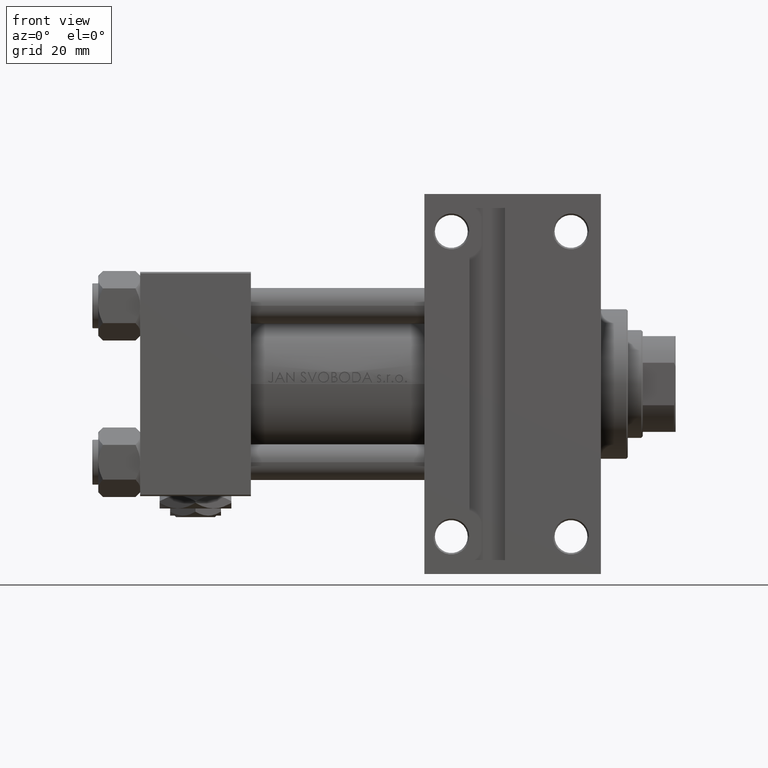
[diagram: clean part render]
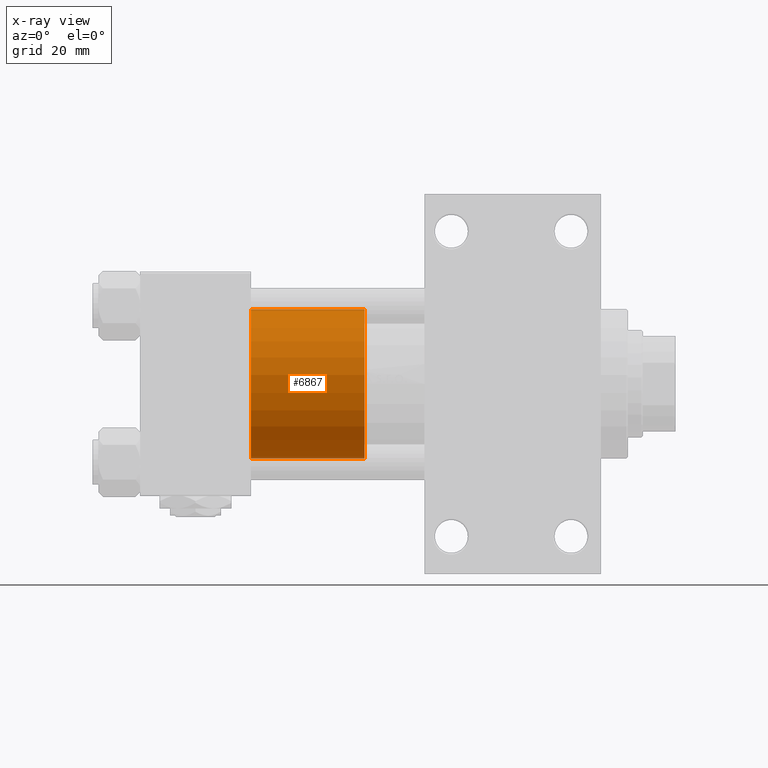
[diagram: x-ray — body ghosted, one internal face saturated and labeled with its STEP entity id]
A machine part, front view, then the same camera in x-ray: the body is ghosted and one INTERNAL B-rep face — a face not visible from any outside direction — is saturated and labeled: STEP entity #6867.
In plain terms, the highlighted cylindrical surface (partial cylindrical patch) has radius 25 mm, axis along (-1, 0, 0).
Its self-contained STEP definition (entity closure, byte-faithful):
#989 = CARTESIAN_POINT ( 'NONE',  ( 0.000000000000000000, 0.000000000000000000, 38.00000000000000000 ) ) ;
#2960 = LINE ( 'NONE', #3956, #47629 ) ;
#3786 = EDGE_LOOP ( 'NONE', ( #28985, #40294, #20884, #45509 ) ) ;
#3956 = CARTESIAN_POINT ( 'NONE',  ( -25.00000000000000000, 0.000000000000000000, 38.00000000000000000 ) ) ;
#6867 = ADVANCED_FACE ( 'NONE', ( #46793 ), #47032, .T. ) ;
#7308 = DIRECTION ( 'NONE',  ( 1.000000000000000000, 0.000000000000000000, 0.000000000000000000 ) ) ;
#8178 = LINE ( 'NONE', #23499, #30265 ) ;
#8735 = DIRECTION ( 'NONE',  ( 0.000000000000000000, 0.000000000000000000, 1.000000000000000000 ) ) ;
#8973 = CARTESIAN_POINT ( 'NONE',  ( 0.000000000000000000, 0.000000000000000000, 0.000000000000000000 ) ) ;
#9619 = CIRCLE ( 'NONE', #37731, 25.00000000000000000 ) ;
#11472 = DIRECTION ( 'NONE',  ( -0.000000000000000000, -0.000000000000000000, -1.000000000000000000 ) ) ;
#11793 = AXIS2_PLACEMENT_3D ( 'NONE', #8973, #41722, #7308 ) ;
#11857 = DIRECTION ( 'NONE',  ( -1.000000000000000000, 0.000000000000000000, 0.000000000000000000 ) ) ;
#12716 = VERTEX_POINT ( 'NONE', #14831 ) ;
#13918 = CARTESIAN_POINT ( 'NONE',  ( 25.00000000000000000, 3.061616997868383043E-15, 38.00000000000000000 ) ) ;
#14067 = EDGE_CURVE ( 'NONE', #27125, #12716, #9619, .T. ) ;
#14831 = CARTESIAN_POINT ( 'NONE',  ( -25.00000000000000000, 0.000000000000000000, 38.00000000000000000 ) ) ;
#18205 = VERTEX_POINT ( 'NONE', #33997 ) ;
#20884 = ORIENTED_EDGE ( 'NONE', *, *, #29350, .T. ) ;
#23035 = CIRCLE ( 'NONE', #11793, 25.00000000000000000 ) ;
#23328 = DIRECTION ( 'NONE',  ( 1.000000000000000000, 0.000000000000000000, 0.000000000000000000 ) ) ;
#23499 = CARTESIAN_POINT ( 'NONE',  ( 25.00000000000000000, 3.061616997868383043E-15, 38.00000000000000000 ) ) ;
#23884 = CARTESIAN_POINT ( 'NONE',  ( 25.00000000000000000, 3.061616997868383043E-15, 0.000000000000000000 ) ) ;
#25164 = EDGE_CURVE ( 'NONE', #12716, #18205, #2960, .T. ) ;
#27125 = VERTEX_POINT ( 'NONE', #13918 ) ;
#27822 = AXIS2_PLACEMENT_3D ( 'NONE', #46053, #39260, #11857 ) ;
#28985 = ORIENTED_EDGE ( 'NONE', *, *, #14067, .F. ) ;
#29350 = EDGE_CURVE ( 'NONE', #37028, #18205, #23035, .T. ) ;
#29668 = EDGE_CURVE ( 'NONE', #27125, #37028, #8178, .T. ) ;
#30265 = VECTOR ( 'NONE', #38840, 1000.000000000000000 ) ;
#33997 = CARTESIAN_POINT ( 'NONE',  ( -25.00000000000000000, 0.000000000000000000, 0.000000000000000000 ) ) ;
#37028 = VERTEX_POINT ( 'NONE', #23884 ) ;
#37731 = AXIS2_PLACEMENT_3D ( 'NONE', #989, #8735, #23328 ) ;
#38840 = DIRECTION ( 'NONE',  ( -0.000000000000000000, -0.000000000000000000, -1.000000000000000000 ) ) ;
#39260 = DIRECTION ( 'NONE',  ( -0.000000000000000000, -0.000000000000000000, -1.000000000000000000 ) ) ;
#40294 = ORIENTED_EDGE ( 'NONE', *, *, #29668, .T. ) ;
#41722 = DIRECTION ( 'NONE',  ( 0.000000000000000000, 0.000000000000000000, 1.000000000000000000 ) ) ;
#45509 = ORIENTED_EDGE ( 'NONE', *, *, #25164, .F. ) ;
#46053 = CARTESIAN_POINT ( 'NONE',  ( 0.000000000000000000, 0.000000000000000000, 38.00000000000000000 ) ) ;
#46793 = FACE_OUTER_BOUND ( 'NONE', #3786, .T. ) ;
#47032 = CYLINDRICAL_SURFACE ( 'NONE', #27822, 25.00000000000000000 ) ;
#47629 = VECTOR ( 'NONE', #11472, 1000.000000000000000 ) ;